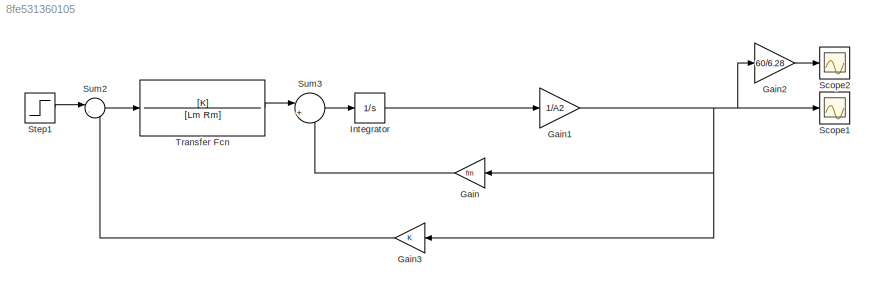
MODEL slx_8fe531360105
KIND model
CONFIG AbsTol = auto
CONFIG EnableMultiTasking = off
CONFIG FixedStep = auto
CONFIG InitFcn = Rm=3.15;\nLm=0.0015;\nK=1.028;\nfm=0.16805;\nA2=0.0033153;\nA1=0.045721;\nL01=0.2625;\nm2=0.24355;\nA1tilde=A1+A2+m2*L01*L01;\nA2tilde=A1tilde-A2;\nf=0.070633;\nlg1=0.16655703376925832;\nm1=0.66984;\ng=9.8;\nCeq=L01*m2*g+lg1*m1*g;\n\n
CONFIG MaxStep = auto
CONFIG MinStep = auto
CONFIG RelTol = 1e-3
CONFIG SampleTimeConstraint = Unconstrained
CONFIG SolverName = VariableStepAuto
CONFIG StartTime = 0.0
CONFIG StopTime = 0.1
BLOCK [Gain] Gain
  Gain = fm
  NameLocation = top
BLOCK [Gain] Gain1
  Gain = 1/A2
BLOCK [Gain] Gain2
  Gain = 60/6.28
BLOCK [Gain] Gain3
  Gain = K
  NameLocation = top
BLOCK [Integrator] Integrator
  Ports = [1, 1]
BLOCK [Scope] Scope1
  Floating = off
  NumInputPorts = 1
  Ports = [1]
  ScopeSpecificationString = Simulink.scopes.TimeScopeBlockCfg('CurrentConfiguration', extmgr.ConfigurationSet(extmgr.Configuration('Core','General UI',true),extmgr.Configuration('Core','Source UI',true),extmgr.Configuration('Sources','WiredSimulink',true,'DataLoggingVariableName','ScopeData1'),extmgr.Configuration('Visuals','Time Domain',true,'SerializedDisplays',{struct('MinYLimReal','-0.97225','MaxYLimReal','8.75022','YLab...<+1393ch>
BLOCK [Scope] Scope2
  Floating = off
  NumInputPorts = 1
  Ports = [1]
  ScopeSpecificationString = Simulink.scopes.TimeScopeBlockCfg('CurrentConfiguration', extmgr.ConfigurationSet(extmgr.Configuration('Core','General UI',true),extmgr.Configuration('Core','Source UI',true),extmgr.Configuration('Sources','WiredSimulink',true,'DataLoggingVariableName','ScopeData1'),extmgr.Configuration('Visuals','Time Domain',true,'SerializedDisplays',{struct('MinYLimReal','-9.28898','MaxYLimReal','83.60083','YLa...<+1406ch>
BLOCK [Step] Step1
  After = -12
  SampleTime = 0
  Time = 0
BLOCK [Sum] Sum2
  Inputs = |--
  Ports = [2, 1]
BLOCK [Sum] Sum3
  Inputs = |+-
  Ports = [2, 1]
BLOCK [TransferFcn] Transfer Fcn
  Denominator = [Lm Rm]
  Numerator = [K]
NET Gain1:1 -> Gain2:1, Gain3:1, Gain:1, Scope1:1
LINE Gain2:1 -> Scope2:1
LINE Gain3:1 -> Sum2:2
LINE Gain:1 -> Sum3:2
LINE Integrator:1 -> Gain1:1
LINE Step1:1 -> Sum2:1
LINE Sum2:1 -> Transfer Fcn:1
LINE Sum3:1 -> Integrator:1
LINE Transfer Fcn:1 -> Sum3:1
note: NET lines group one-source signal fan-out (src -> all destinations, sorted); 1:1 wires keep LINE
